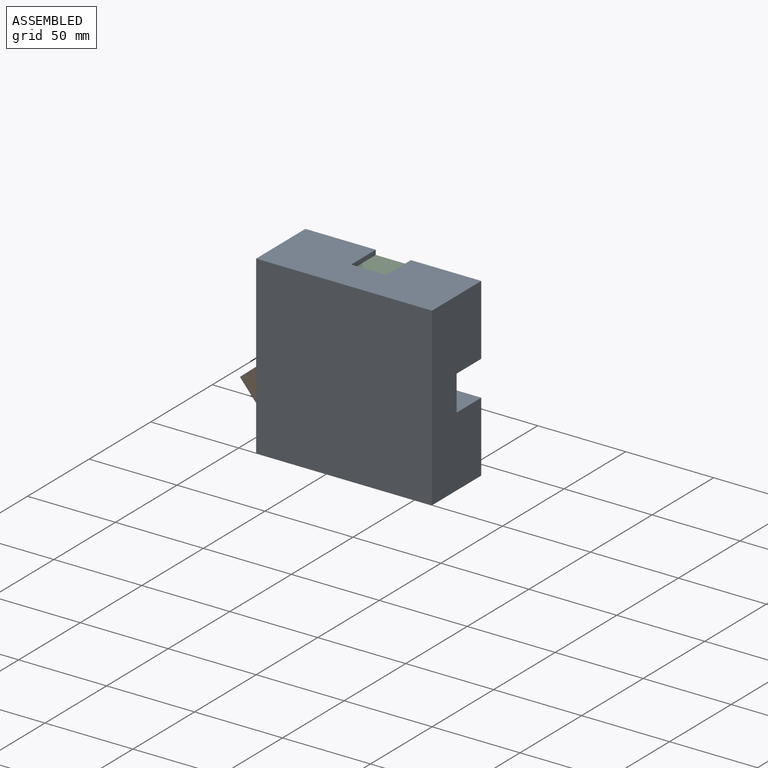
[diagram: assembled view]
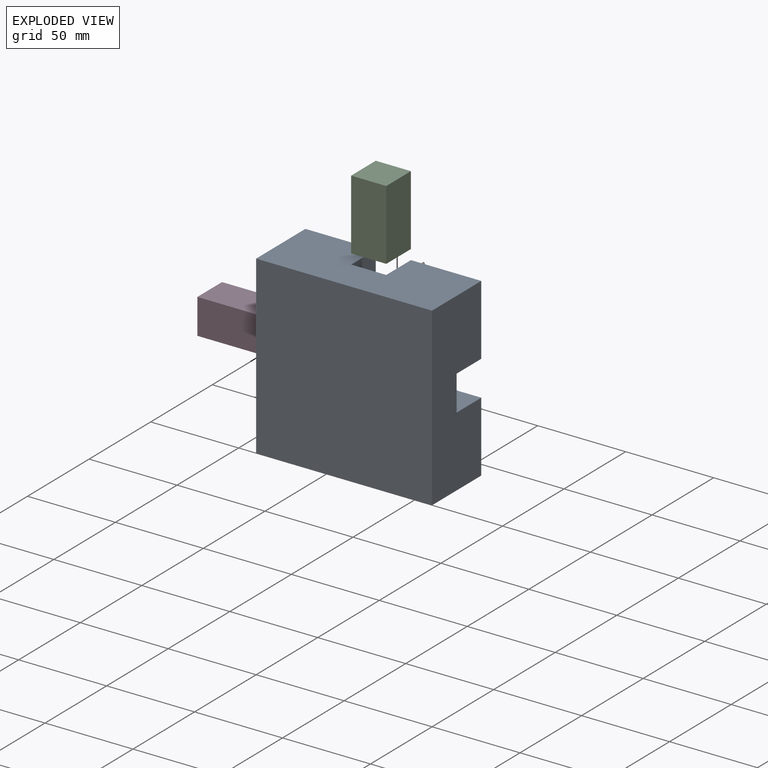
[diagram: exploded view]
GUIDED TOUR — MATED ASSEMBLY (Onshape document aab47f9366b66d51bf12e210, AutoMate assembly aab47f9366b66d51bf12e210_6c26f15a08801c79e583c7cc_1141cc2ff7fc5801bfbfa0ba_default)

This assembly has 4 components, labeled P0..P3 below (a component is one placed occurrence of a part; the same part can appear more than once), held together by 4 mates. A mate is a constraint between two components; its type names the relative motion it leaves free:
  REVOLUTE — leaves rotation about the listed axis free (a hinge),
  SLIDER — leaves translation along the listed axis free.
Axis/direction vectors are unit vectors and 'through' points are millimeter coordinates, both in the assembly's world frame.

MATES
  1. REVOLUTE "Revolute 2": P1 <-> P2, axis (0.000, 1.000, 0.000) through (-50.00, 50.00, 77.30) mm
  2. SLIDER "piece one": P2 <-> P0, axis (0.000, 0.000, 1.000) through (-40.00, 40.00, 97.30) mm
  3. SLIDER "piece two": P3 <-> P0, axis (1.000, 0.000, 0.000) through (-62.57, 20.00, 40.00) mm
  4. REVOLUTE "Revolute 1": P1 <-> P3, axis (0.000, 1.000, 0.000) through (-82.57, 50.00, 50.00) mm

ASSEMBLY ORDER
  1. P1 — the base component [order verified]
  2. P0 [order verified]
  3. P3 [order verified]
  4. P2 [order verified]
Order-tag legend:
  [order verified] — this step's position reverses a verified removal order: the component was checked to insert without passing through the ones already placed.

Of the 4 components, 4 carry the full construction recipe — the FeatureScript program that regenerates the part's solid from scratch; the rest are supplied as boundary geometry only.
Each toured component is shown spotlighted twice — in the assembled view, then in the exploded view, where a leader line traces a displaced component back to its assembled socket (saturated green if recipe-attached, orange if geometry-only; every other component desaturated gray) — followed by its recipe or geometry summary and the mates that hold it.
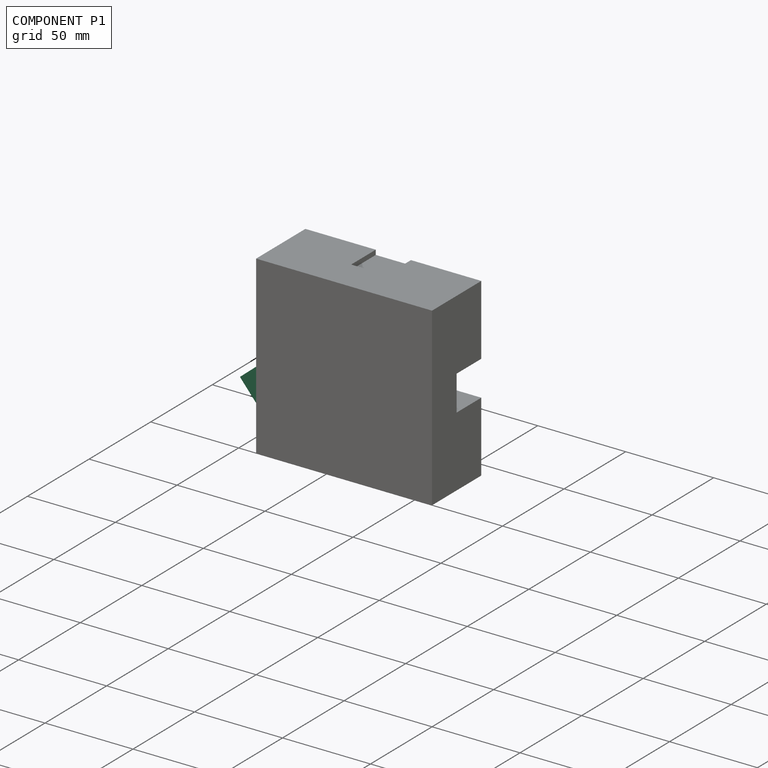
[diagram: component P1 — assembled]
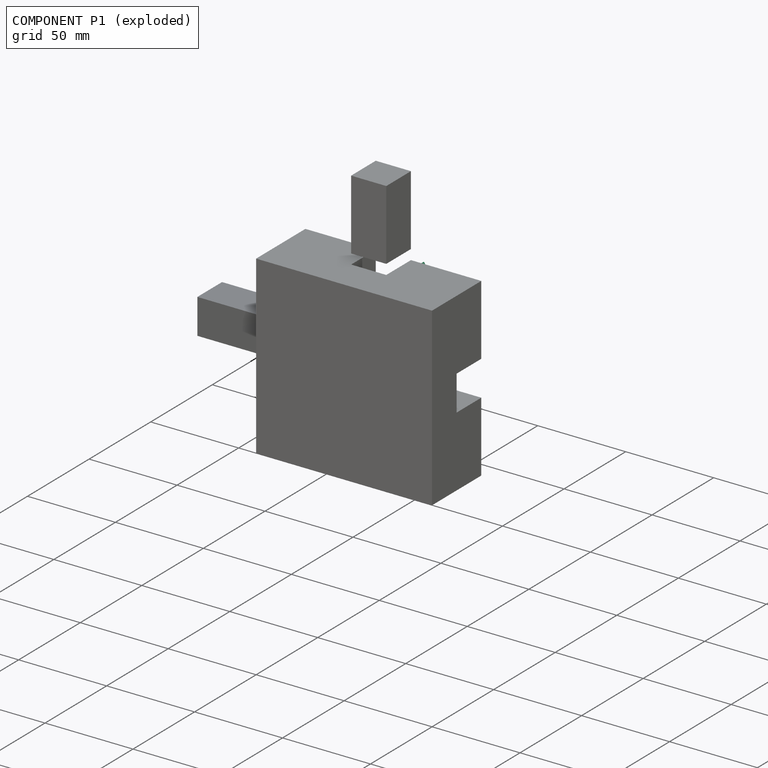
[diagram: component P1 — exploded]
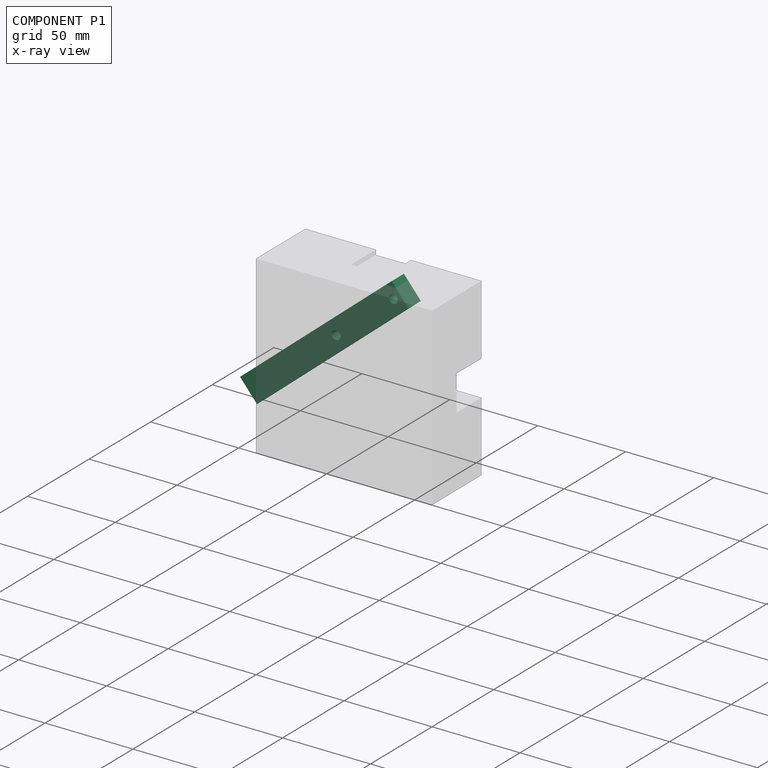
[diagram: component P1 — x-ray view]
COMPONENT P1 — recipe-attached (CADFS 00330327, mesh-verified: the recipe's output STEP matches this component's geometry to below the mesh-comparison resolution (tessellation chordal tolerance ~0.172 mm)).
Held by: REVOLUTE mate "Revolute 2" to P2; REVOLUTE mate "Revolute 1" to P3.
Construction recipe (FeatureScript — the CAD program that rebuilds this solid; sketch coordinates are in the units given by the * unit suffixes, e.g. mm):

FeatureScript 1511;
import(path : "onshape/std/geometry.fs", version : "1511.0");
import(path : "onshape/std/common.fs", version : "1511.0");
const mm = millimeter;
const VERTEX = EntityType.VERTEX;
const EDGE = EntityType.EDGE;
const FACE = EntityType.FACE;
const BODY = EntityType.BODY;
function v(x, y){return vector(x, y);}
function OD(order){return orderDisambiguation(order);}
function OSD(set){return originalSetDisambiguation(set);}
function TD(topology){return topologyDisambiguation(topology);}
function TDD(query){return trueDependencyDisambiguation(query);}
function sQuery(a, b, c) {return sketchEntityQuery(a, b, c);}

annotation { "Feature Type Name" : "Feature", "Feature Type Description" : "" }
export const myFeature = defineFeature(function(context is Context, id is Id, definition is map)
    precondition{}
    {
        {
            var Q0;
            Q0=qCreatedBy(makeId("Top.planeOp"),FACE);
            var sketch = newSketch(context, id + "F0", { "sketchPlane" : qUnion([Q0])});
            skLineSegment(sketch, "E0.bottom", {"start": v(-62.77, 14.07) * mm, "end": v(-10.27, 14.07) * mm});
            skLineSegment(sketch, "E0.top", {"start": v(-62.77, -0.93) * mm, "end": v(-10.27, -0.93) * mm});
            skLineSegment(sketch, "E0.left", {"start": v(-62.77, 14.07) * mm, "end": v(-62.77, -0.93) * mm});
            skLineSegment(sketch, "E0.right", {"start": v(-10.27, 14.07) * mm, "end": v(-10.27, -0.93) * mm});
            skSolve(sketch);
        }
        {
            var Q0;
            Q0=makeQuery(id+"F0.imprint","IMPRINT",FACE,{"disambiguationData":[TD([[makeQuery(id+"F0.imprint","IMPRINT",EDGE,{"derivedFrom":sQuery(id+"F0.wireOp",EDGE,"E0.bottom")}),-1.0]])]});
            extrude(context, id + "F1", {"entities" : qUnion([Q0]), "depth" : 10 * mm});
        }
        {
            var Q0;
            Q0=makeQuery(id+"F1.opExtrude","CAP_FACE",FACE,{"disambiguationData":[OSD([sQuery(id+"F0.wireOp",EDGE,"E0.bottom"),sQuery(id+"F0.wireOp",EDGE,"E0.top"),sQuery(id+"F0.wireOp",EDGE,"E0.left"),sQuery(id+"F0.wireOp",EDGE,"E0.right")])],"isStart":false});
            var sketch = newSketch(context, id + "F2", { "sketchPlane" : qUnion([Q0])});
            skLineSegment(sketch, "E1", {"start": v(-62.77, 6.57) * mm, "end": v(-10.27, 6.57) * mm, "construction": true});
            skLineSegment(sketch, "E2", {"start": v(-15.27, 14.07) * mm, "end": v(-15.27, -0.93) * mm, "construction": true});
            skLineSegment(sketch, "E3", {"start": v(-57.77, -0.93) * mm, "end": v(-57.77, 14.07) * mm, "construction": true});
            skCircle(sketch, "E4", {"center": v(-57.77, 6.57) * mm, "radius": 2.5 * mm});
            skCircle(sketch, "E5", {"center": v(-15.27, 6.57) * mm, "radius": 2.5 * mm});
            skSolve(sketch);
        }
        {
            var Q0;
            Q0=makeQuery(id+"F2.imprint","IMPRINT",FACE,{"disambiguationData":[TD([[makeQuery(id+"F2.imprint","IMPRINT",EDGE,{"derivedFrom":sQuery(id+"F2.wireOp",EDGE,"E5")}),1.0]])]});
            var Q1;
            Q1=makeQuery(id+"F2.imprint","IMPRINT",FACE,{"disambiguationData":[TD([[makeQuery(id+"F2.imprint","IMPRINT",EDGE,{"derivedFrom":sQuery(id+"F2.wireOp",EDGE,"E4")}),1.0]])]});
            extrude(context, id + "F3", {"entities" : qUnion([Q0, Q1]), "operationType" : NewBodyOperationType.REMOVE, "oppositeDirection" : true, "depth" : 25 * mm});
        }
        {
            var Q0;
            Q0=makeQuery(id+"F1.opExtrude","SWEPT_FACE",FACE,{"disambiguationData":[OSD([sQuery(id+"F0.wireOp",EDGE,"E0.left")])]});
            var sketch = newSketch(context, id + "F4", { "sketchPlane" : qUnion([Q0])});
            skLineSegment(sketch, "E6.bottom", {"start": v(0.93, 10) * mm, "end": v(-14.07, 10) * mm});
            skLineSegment(sketch, "E6.top", {"start": v(0.93, 0) * mm, "end": v(-14.07, 0) * mm});
            skLineSegment(sketch, "E6.left", {"start": v(0.93, 10) * mm, "end": v(0.93, 0) * mm});
            skLineSegment(sketch, "E6.right", {"start": v(-14.07, 10) * mm, "end": v(-14.07, 0) * mm});
            skSolve(sketch);
        }
        {
            var Q0;
            Q0 = qSketchRegion(id + "F4", true);
            extrude(context, id + "F5", {"entities" : qUnion([Q0]), "operationType" : NewBodyOperationType.ADD, "depth" : 60 * mm});
        }
        {
            var Q0;
            Q0=makeQuery(id+"F5.boolean.opBoolean","MERGE",FACE,{"derivedFrom":[makeQuery(id+"F1.opExtrude","CAP_FACE",FACE,{"disambiguationData":[OSD([sQuery(id+"F0.wireOp",EDGE,"E0.bottom"),sQuery(id+"F0.wireOp",EDGE,"E0.top"),sQuery(id+"F0.wireOp",EDGE,"E0.left"),sQuery(id+"F0.wireOp",EDGE,"E0.right")])],"isStart":true}),makeQuery(id+"F5.opExtrude","SWEPT_FACE",FACE,{"disambiguationData":[OSD([sQuery(id+"F4.wireOp",EDGE,"E6.top")])]})]});
            var sketch = newSketch(context, id + "F6", { "sketchPlane" : qUnion([Q0])});
            skLineSegment(sketch, "E7", {"start": v(-122.77, -6.57) * mm, "end": v(-117.77, -6.57) * mm, "construction": true});
            skCircle(sketch, "E8", {"center": v(-117.77, -6.57) * mm, "radius": 2.5 * mm});
            skLineSegment(sketch, "E9", {"start": v(-117.77, -9.07) * mm, "end": v(-117.77, -4.07) * mm, "construction": true});
            skSolve(sketch);
        }
        {
            var Q0;
            Q0 = qSketchRegion(id + "F6", true);
            extrude(context, id + "F7", {"entities" : qUnion([Q0]), "operationType" : NewBodyOperationType.ADD, "depth" : 5 * mm});
        }
        {
            var Q0;
            Q0=makeQuery(id+"F5.opExtrude","CAP_FACE",FACE,{"disambiguationData":[OSD([sQuery(id+"F4.wireOp",EDGE,"E6.bottom"),sQuery(id+"F4.wireOp",EDGE,"E6.top"),sQuery(id+"F4.wireOp",EDGE,"E6.left"),sQuery(id+"F4.wireOp",EDGE,"E6.right")])],"isStart":false});
            cPlane(context, id + "F8", {"entities" : qUnion([Q0]), "cplaneType" : CPlaneType.OFFSET, "offset" : 5 * mm, "oppositeDirection" : true, "width" : 150 * mm, "height" : 150 * mm});
        }
        {
            var Q0;
            Q0=makeQuery(id+"F7.opExtrude","CAP_FACE",FACE,{"disambiguationData":[OSD([sQuery(id+"F6.wireOp",EDGE,"E8")])],"isStart":false});
            var sketch = newSketch(context, id + "F9", { "sketchPlane" : qUnion([Q0])});
            skLineSegment(sketch, "E10", {"start": v(-117.77, -6.57) * mm, "end": v(-117.77, -4.07) * mm, "construction": true});
            skLineSegment(sketch, "E11", {"start": v(-117.77, -4.07) * mm, "end": v(-117.77, -9.07) * mm, "construction": true});
            skSolve(sketch);
        }
        {
            var Q0;
            Q0=qCreatedBy(id+"F8.planeOp",FACE);
            var sketch = newSketch(context, id + "F10", { "sketchPlane" : qUnion([Q0])});
            skLineSegment(sketch, "E12", {"start": v(-9.07, -5) * mm, "end": v(-6.57, -5) * mm});
            skLineSegment(sketch, "E13", {"start": v(-6.57, -5) * mm, "end": v(-6.57, -7.5) * mm});
            skArc(sketch, "E14", {"start": v(-9.07, -5) * mm, "mid": v(-8.33, -6.77) * mm, "end": v(-6.57, -7.5) * mm});
            skSolve(sketch);
        }
        {
            var Q0;
            Q0=makeQuery(id+"F10.imprint","IMPRINT",FACE,{"disambiguationData":[TD([[makeQuery(id+"F10.imprint","IMPRINT",EDGE,{"derivedFrom":sQuery(id+"F10.wireOp",EDGE,"E12")}),-1.0]])]});
            var Q1;
            Q1=sQuery(id+"F10.wireOp",EDGE,"E14");
            var Q2;
            Q2=sQuery(id+"F10.wireOp",EDGE,"E13");
            var Q3;
            Q3=sQuery(id+"F10.wireOp",EDGE,"E12");
            var Q4;
            Q4=sQuery(id+"F10.wireOp",EDGE,"E13");
            revolve(context, id + "F11", {"operationType" : NewBodyOperationType.ADD, "entities" : qUnion([Q0]), "surfaceEntities" : qUnion([Q1, Q2, Q3]), "axis" : qUnion([Q4]), "revolveType" : RevolveType.FULL});
        }
    });
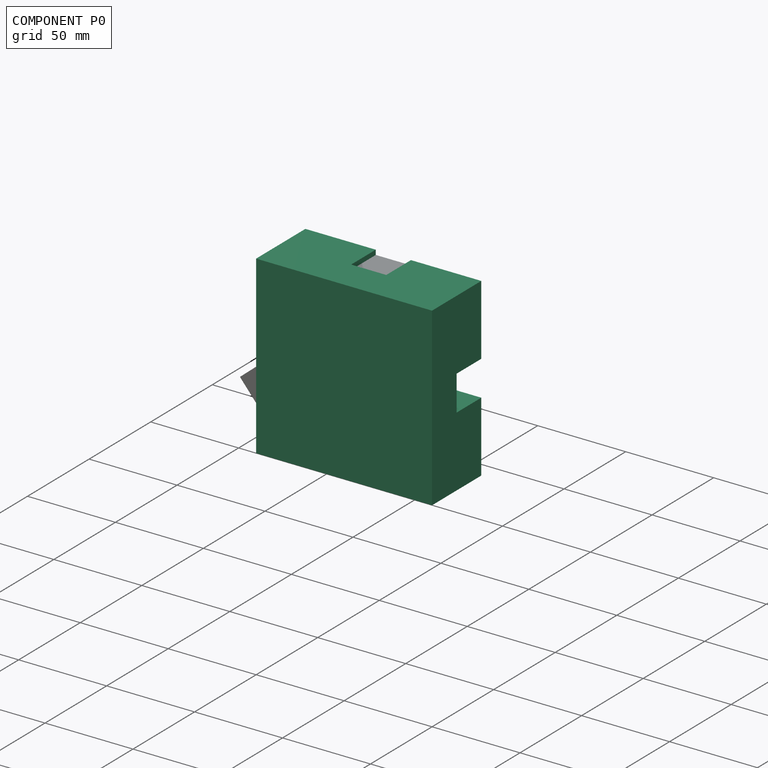
[diagram: component P0 — assembled]
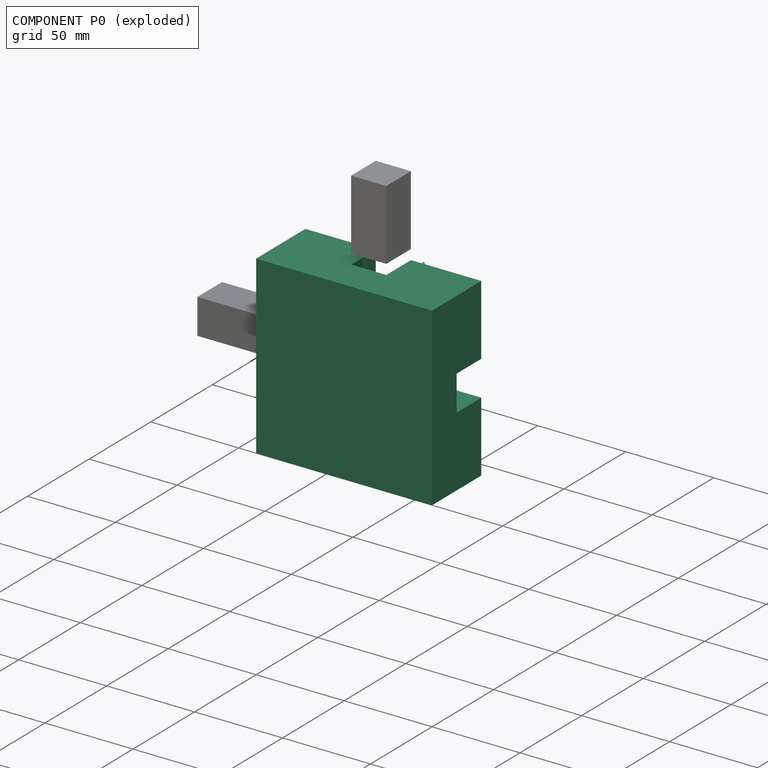
[diagram: component P0 — exploded]
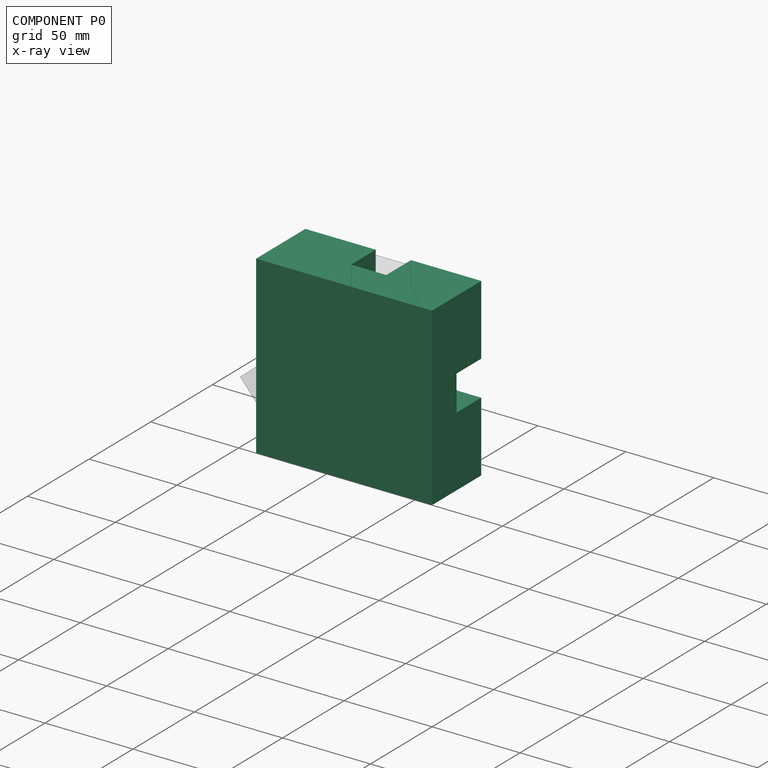
[diagram: component P0 — x-ray view]
COMPONENT P0 — recipe-attached (CADFS 00330325, mesh-verified: the recipe's output STEP matches this component's geometry to below the mesh-comparison resolution (tessellation chordal tolerance ~0.22 mm)).
Held by: SLIDER mate "piece one" to P2; SLIDER mate "piece two" to P3.
Construction recipe (FeatureScript — the CAD program that rebuilds this solid; sketch coordinates are in the units given by the * unit suffixes, e.g. mm):

FeatureScript 1511;
import(path : "onshape/std/geometry.fs", version : "1511.0");
import(path : "onshape/std/common.fs", version : "1511.0");
const mm = millimeter;
const VERTEX = EntityType.VERTEX;
const EDGE = EntityType.EDGE;
const FACE = EntityType.FACE;
const BODY = EntityType.BODY;
function v(x, y){return vector(x, y);}
function OD(order){return orderDisambiguation(order);}
function OSD(set){return originalSetDisambiguation(set);}
function TD(topology){return topologyDisambiguation(topology);}
function TDD(query){return trueDependencyDisambiguation(query);}
function sQuery(a, b, c) {return sketchEntityQuery(a, b, c);}

annotation { "Feature Type Name" : "Feature", "Feature Type Description" : "" }
export const myFeature = defineFeature(function(context is Context, id is Id, definition is map)
    precondition{}
    {
        {
            var Q0;
            Q0=qCreatedBy(makeId("Top.planeOp"),FACE);
            var sketch = newSketch(context, id + "F0", { "sketchPlane" : qUnion([Q0])});
            skLineSegment(sketch, "E0.bottom", {"start": v(-78.35, 62.78) * mm, "end": v(21.65, 62.78) * mm});
            skLineSegment(sketch, "E0.top", {"start": v(-78.35, -37.22) * mm, "end": v(21.65, -37.22) * mm});
            skLineSegment(sketch, "E0.left", {"start": v(-78.35, 62.78) * mm, "end": v(-78.35, -37.22) * mm});
            skLineSegment(sketch, "E0.right", {"start": v(21.65, 62.78) * mm, "end": v(21.65, -37.22) * mm});
            skSolve(sketch);
        }
        {
            var Q0;
            Q0 = qSketchRegion(id + "F0", true);
            extrude(context, id + "F1", {"entities" : qUnion([Q0]), "depth" : 40 * mm});
        }
        {
            var Q0;
            Q0=makeQuery(id+"F1.opExtrude","CAP_FACE",FACE,{"disambiguationData":[OSD([sQuery(id+"F0.wireOp",EDGE,"E0.bottom"),sQuery(id+"F0.wireOp",EDGE,"E0.top"),sQuery(id+"F0.wireOp",EDGE,"E0.left"),sQuery(id+"F0.wireOp",EDGE,"E0.right")])],"isStart":false});
            var sketch = newSketch(context, id + "F2", { "sketchPlane" : qUnion([Q0])});
            skLineSegment(sketch, "E1.bottom", {"start": v(-78.35, 62.78) * mm, "end": v(-38.35, 62.78) * mm, "construction": true});
            skLineSegment(sketch, "E1.top", {"start": v(-78.35, -37.22) * mm, "end": v(-38.35, -37.22) * mm, "construction": true});
            skLineSegment(sketch, "E1.left", {"start": v(-78.35, 62.78) * mm, "end": v(-78.35, 22.78) * mm, "construction": true});
            skLineSegment(sketch, "E1.right", {"start": v(21.65, 62.78) * mm, "end": v(21.65, 22.78) * mm, "construction": true});
            skLineSegment(sketch, "E2", {"start": v(-28.35, 62.78) * mm, "end": v(-28.35, -37.22) * mm, "construction": true});
            skLineSegment(sketch, "E3", {"start": v(-78.35, 12.78) * mm, "end": v(21.65, 12.78) * mm, "construction": true});
            skLineSegment(sketch, "E4", {"start": v(-38.35, 62.78) * mm, "end": v(-38.35, 22.78) * mm});
            skLineSegment(sketch, "E5", {"start": v(-18.35, -37.22) * mm, "end": v(-18.35, 2.78) * mm});
            skLineSegment(sketch, "E6", {"start": v(21.65, 22.78) * mm, "end": v(-18.35, 22.78) * mm});
            skLineSegment(sketch, "E7", {"start": v(-78.35, 2.78) * mm, "end": v(-38.35, 2.78) * mm});
            skLineSegment(sketch, "E8", {"start": v(-38.35, -37.22) * mm, "end": v(-18.35, -37.22) * mm});
            skLineSegment(sketch, "E9", {"start": v(-18.35, -37.22) * mm, "end": v(21.65, -37.22) * mm, "construction": true});
            skLineSegment(sketch, "E10", {"start": v(21.65, 2.78) * mm, "end": v(21.65, -37.22) * mm, "construction": true});
            skLineSegment(sketch, "E11", {"start": v(21.65, 22.78) * mm, "end": v(21.65, 2.78) * mm});
            skLineSegment(sketch, "E12", {"start": v(-78.35, 2.78) * mm, "end": v(-78.35, -37.22) * mm, "construction": true});
            skLineSegment(sketch, "E13", {"start": v(-78.35, 22.78) * mm, "end": v(-78.35, 2.78) * mm});
            skLineSegment(sketch, "E14", {"start": v(-18.35, 62.78) * mm, "end": v(21.65, 62.78) * mm, "construction": true});
            skLineSegment(sketch, "E15", {"start": v(-38.35, 62.78) * mm, "end": v(-18.35, 62.78) * mm});
            skLineSegment(sketch, "E16", {"start": v(-18.35, 22.78) * mm, "end": v(-18.35, 62.78) * mm});
            skLineSegment(sketch, "E17", {"start": v(-38.35, 22.78) * mm, "end": v(-78.35, 22.78) * mm});
            skLineSegment(sketch, "E18", {"start": v(-38.35, 2.78) * mm, "end": v(-18.35, 2.78) * mm, "construction": true});
            skLineSegment(sketch, "E19", {"start": v(-18.35, 2.78) * mm, "end": v(21.65, 2.78) * mm});
            skLineSegment(sketch, "E20", {"start": v(-18.35, 2.78) * mm, "end": v(-18.35, 22.78) * mm, "construction": true});
            skLineSegment(sketch, "E21", {"start": v(-18.35, 22.78) * mm, "end": v(-38.35, 22.78) * mm, "construction": true});
            skLineSegment(sketch, "E22", {"start": v(-38.35, 2.78) * mm, "end": v(-38.35, -37.22) * mm});
            skLineSegment(sketch, "E23", {"start": v(-38.35, 22.78) * mm, "end": v(-38.35, 2.78) * mm, "construction": true});
            skSolve(sketch);
        }
        {
            var Q0;
            Q0 = qSketchRegion(id + "F2", true);
            extrude(context, id + "F3", {"entities" : qUnion([Q0]), "operationType" : NewBodyOperationType.REMOVE, "oppositeDirection" : true, "depth" : 20 * mm});
        }
    });
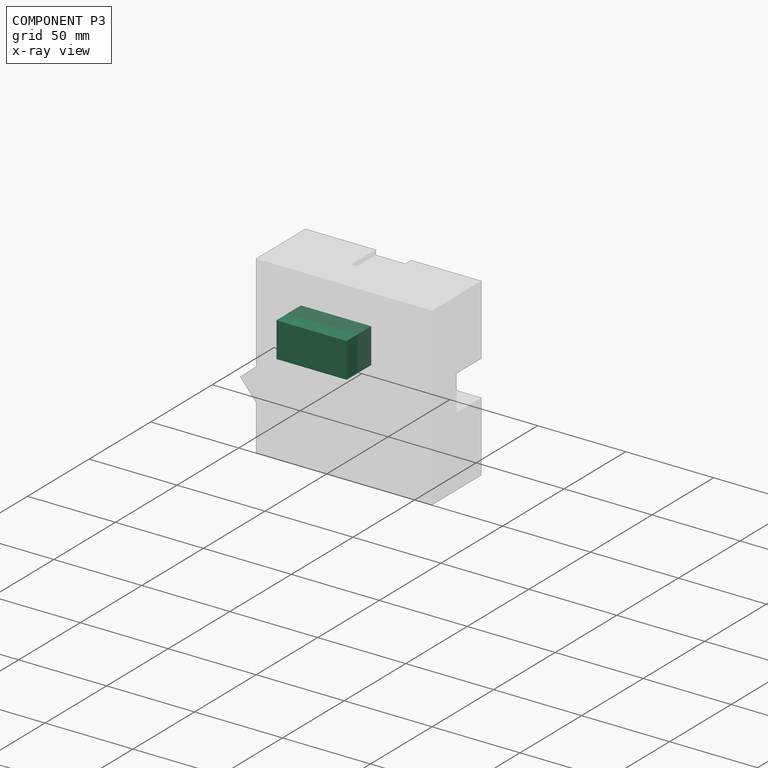
[diagram: component P3 — x-ray view]
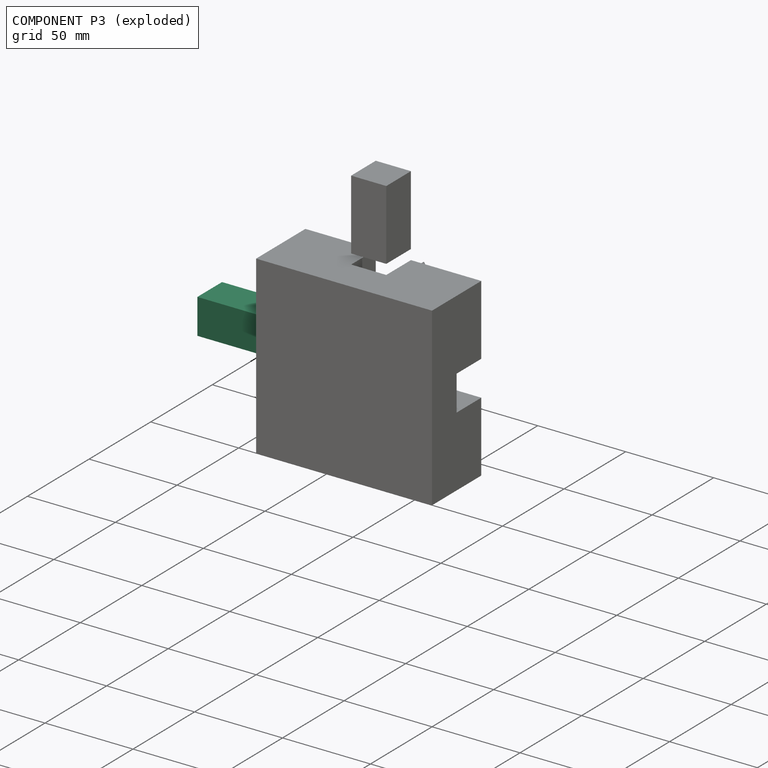
[diagram: component P3 — exploded]
COMPONENT P3 — same part as P2 (CADFS 00330326); its construction recipe is shown at P2.
Held by: SLIDER mate "piece two" to P0; REVOLUTE mate "Revolute 1" to P1.
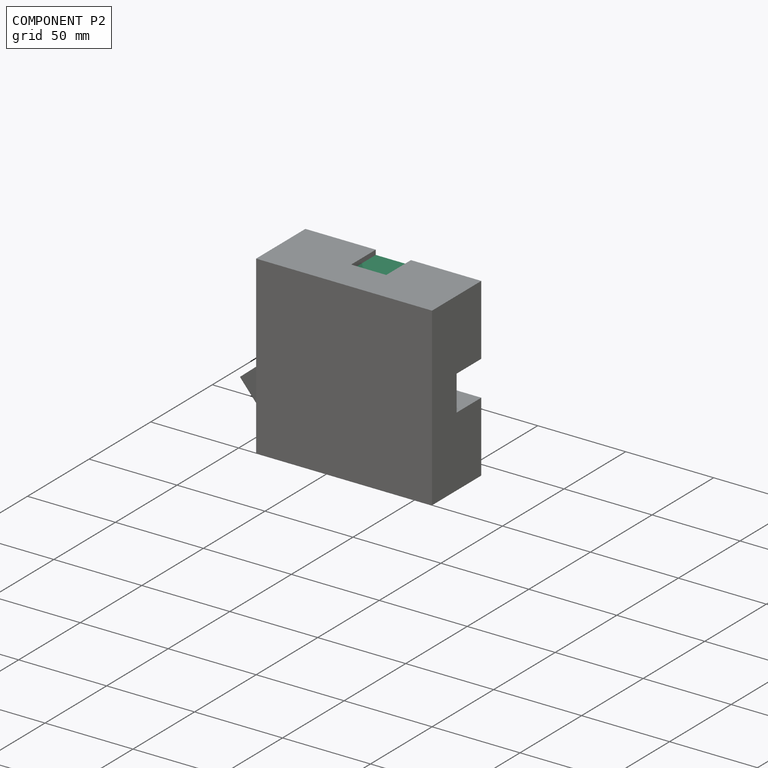
[diagram: component P2 — assembled]
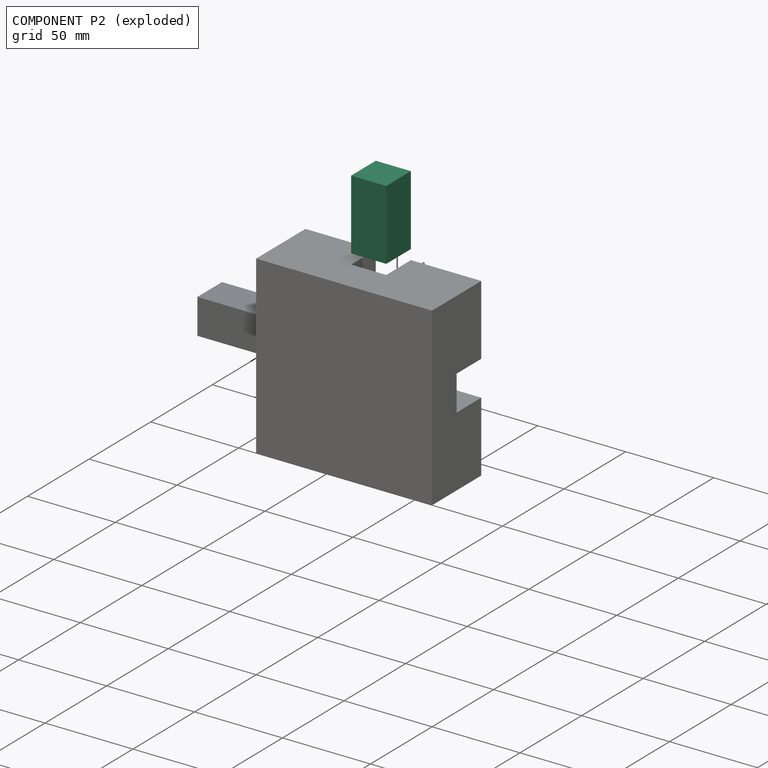
[diagram: component P2 — exploded]
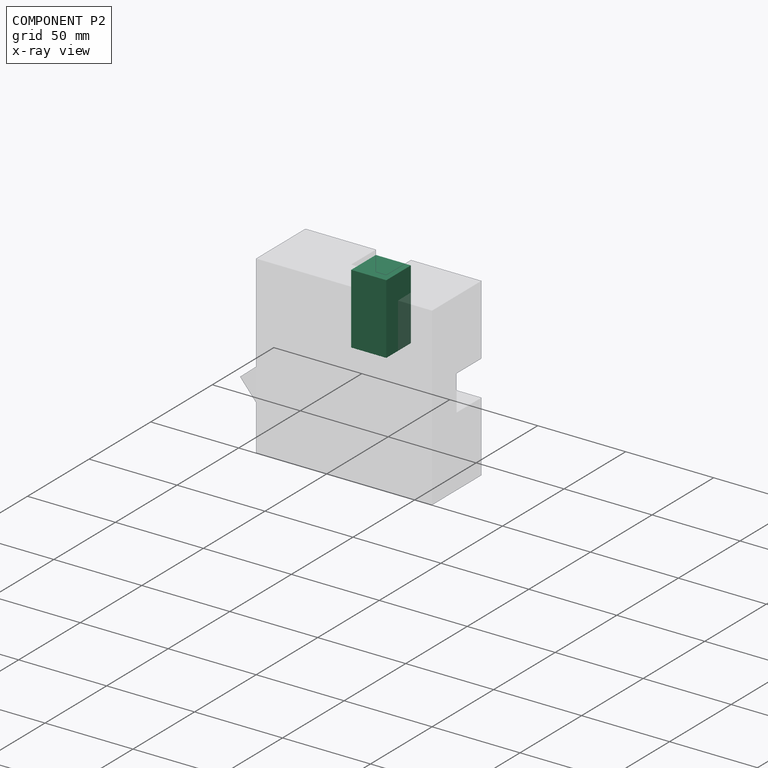
[diagram: component P2 — x-ray view]
COMPONENT P2 — recipe-attached (CADFS 00330326, mesh-verified: the recipe's output STEP matches this component's geometry to below the mesh-comparison resolution (tessellation chordal tolerance ~0.0808 mm)).
Held by: REVOLUTE mate "Revolute 2" to P1; SLIDER mate "piece one" to P0.
Construction recipe (FeatureScript — the CAD program that rebuilds this solid; sketch coordinates are in the units given by the * unit suffixes, e.g. mm):

FeatureScript 1511;
import(path : "onshape/std/geometry.fs", version : "1511.0");
import(path : "onshape/std/common.fs", version : "1511.0");
const mm = millimeter;
const VERTEX = EntityType.VERTEX;
const EDGE = EntityType.EDGE;
const FACE = EntityType.FACE;
const BODY = EntityType.BODY;
function v(x, y){return vector(x, y);}
function OD(order){return orderDisambiguation(order);}
function OSD(set){return originalSetDisambiguation(set);}
function TD(topology){return topologyDisambiguation(topology);}
function TDD(query){return trueDependencyDisambiguation(query);}
function sQuery(a, b, c) {return sketchEntityQuery(a, b, c);}

annotation { "Feature Type Name" : "Feature", "Feature Type Description" : "" }
export const myFeature = defineFeature(function(context is Context, id is Id, definition is map)
    precondition{}
    {
        {
            var Q0;
            Q0=qCreatedBy(makeId("Front.planeOp"),FACE);
            var sketch = newSketch(context, id + "F0", { "sketchPlane" : qUnion([Q0])});
            skLineSegment(sketch, "E0.bottom", {"start": v(-21.67, -5.22) * mm, "end": v(18.33, -5.22) * mm});
            skLineSegment(sketch, "E0.top", {"start": v(-21.67, -25.22) * mm, "end": v(18.33, -25.22) * mm});
            skLineSegment(sketch, "E0.left", {"start": v(-21.67, -5.22) * mm, "end": v(-21.67, -25.22) * mm});
            skLineSegment(sketch, "E0.right", {"start": v(18.33, -5.22) * mm, "end": v(18.33, -25.22) * mm});
            skSolve(sketch);
        }
        {
            var Q0;
            Q0 = qSketchRegion(id + "F0", true);
            extrude(context, id + "F1", {"entities" : qUnion([Q0]), "depth" : 20 * mm});
        }
        {
            var Q0;
            Q0=makeQuery(id+"F1.opExtrude","SWEPT_FACE",FACE,{"disambiguationData":[OSD([sQuery(id+"F0.wireOp",EDGE,"E0.bottom")])]});
            var sketch = newSketch(context, id + "F2", { "sketchPlane" : qUnion([Q0])});
            skLineSegment(sketch, "E1", {"start": v(-1.67, 0) * mm, "end": v(-1.67, -20) * mm, "construction": true});
            skLineSegment(sketch, "E2", {"start": v(-21.67, -10) * mm, "end": v(18.33, -10) * mm, "construction": true});
            skCircle(sketch, "E3", {"center": v(-1.67, -10) * mm, "radius": 2.5 * mm});
            skSolve(sketch);
        }
        {
            var Q0;
            Q0 = qSketchRegion(id + "F2", true);
            extrude(context, id + "F3", {"entities" : qUnion([Q0]), "operationType" : NewBodyOperationType.ADD, "depth" : 10 * mm});
        }
    });
PROVENANCE & LICENSES
Assembly (occurrences, transforms, mates, per-part STEP geometry): AutoMate dataset, Zenodo record 7776208, CC0.
Construction recipes: CADFS (HuggingFace VladPyatov/CADFS, CC-BY-4.0, layered over the ABC dataset), FeatureScript reconstruction programs keyed by ABC model id.
Join: ABC meta listings map ABC model id -> Onshape documentId; within a shared document, parts are matched by geometric signature (bounding-box dims + volume at 0.1% relative tolerance, exact B-rep face/solid counts).
Verification: 4 of this assembly's 4 components carry a recipe attachment, and every attachment is mesh-verified: the CADFS STEP and the AutoMate member STEP were compared as meshes in their shared local frame (symmetric sampled-point-to-mesh distance); worst across the 4 attachments: below the mesh-comparison resolution (tessellation chordal tolerance ~0.22 mm) on a 147 mm part.
Renders: orthographic iso camera (az 35 / el 25); the floor grid conveys scale (grid pitch printed in each image; no ruler). In the exploded view each component is displaced by its stored offset vector: the offsets alone carry the explosion direction (mate normal/axis signs are not orientation cues and do not encode it), and separation distances are assigned per mate-chain, not proportionally to assembly-order depth.
